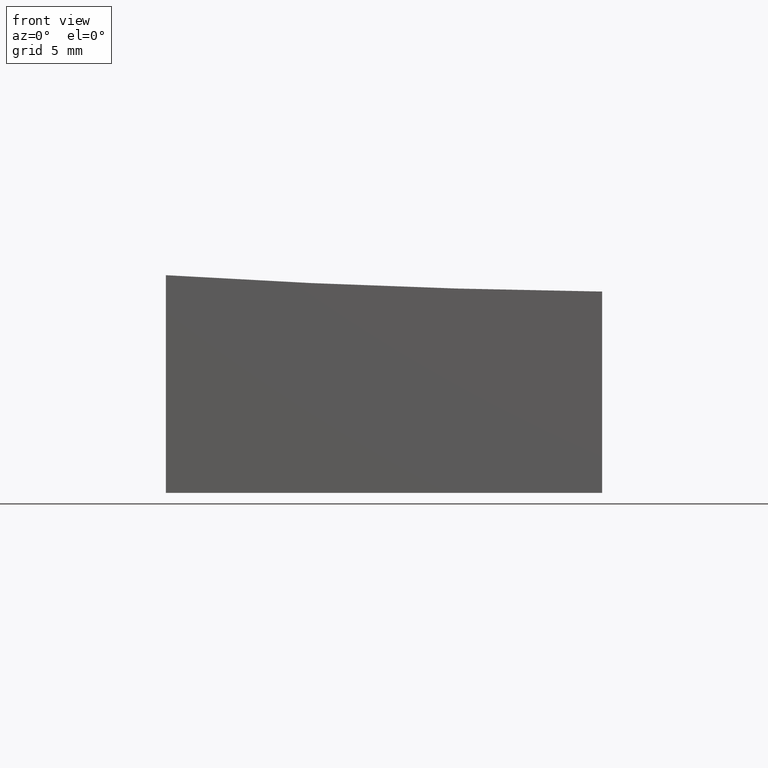
[diagram: clean part render]
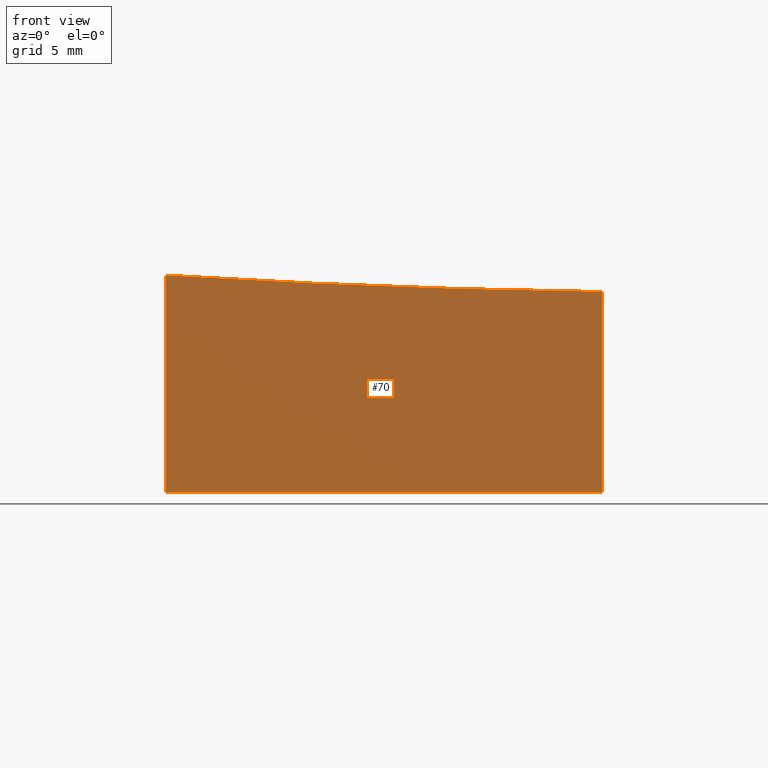
[diagram: same view with one face highlighted and labeled with its STEP entity id]
A machine part, front view. The second image highlights one B-rep face of the part: STEP entity #70.
In plain terms, the highlighted planar face has unit normal (-0, 1, 0).
Its self-contained STEP definition (entity closure, byte-faithful):
#1 = PLANE ( 'NONE',  #266 ) ;
#22 = DIRECTION ( 'NONE',  ( -1.000000000000000000, -1.735571129814823690E-16, 0.000000000000000000 ) ) ;
#58 = CARTESIAN_POINT ( 'NONE',  ( 10.00000000000000178, -12.50000000000000000, -10.00000000000000000 ) ) ;
#70 = ADVANCED_FACE ( 'NONE', ( #190 ), #1, .F. ) ;
#82 = CARTESIAN_POINT ( 'NONE',  ( 10.00000000000000178, -12.50000000000000000, -0.7733733004237630659 ) ) ;
#83 = DIRECTION ( 'NONE',  ( -0.000000000000000000, -0.000000000000000000, -1.000000000000000000 ) ) ;
#87 = CARTESIAN_POINT ( 'NONE',  ( 10.00000000000000178, -12.50000000000000000, 10.00000000000000000 ) ) ;
#94 = EDGE_CURVE ( 'NONE', #220, #195, #148, .T. ) ;
#104 = CARTESIAN_POINT ( 'NONE',  ( 10.00000000000000178, -12.50000000000000000, -10.00000000000000000 ) ) ;
#106 = LINE ( 'NONE', #188, #229 ) ;
#107 = ORIENTED_EDGE ( 'NONE', *, *, #94, .T. ) ;
#114 = VECTOR ( 'NONE', #83, 1000.000000000000000 ) ;
#116 = LINE ( 'NONE', #210, #114 ) ;
#126 = VERTEX_POINT ( 'NONE', #82 ) ;
#128 = EDGE_LOOP ( 'NONE', ( #150, #147, #217, #107 ) ) ;
#131 = VERTEX_POINT ( 'NONE', #144 ) ;
#135 = EDGE_CURVE ( 'NONE', #126, #131, #249, .T. ) ;
#138 = EDGE_CURVE ( 'NONE', #131, #220, #106, .T. ) ;
#144 = CARTESIAN_POINT ( 'NONE',  ( -9.999999999999996447, -12.50000000000000355, -0.02224248780913207213 ) ) ;
#147 = ORIENTED_EDGE ( 'NONE', *, *, #135, .T. ) ;
#148 = LINE ( 'NONE', #58, #198 ) ;
#150 = ORIENTED_EDGE ( 'NONE', *, *, #259, .F. ) ;
#166 = DIRECTION ( 'NONE',  ( -1.734723475976807094E-16, 1.000000000000000000, 0.000000000000000000 ) ) ;
#187 = DIRECTION ( 'NONE',  ( 1.000000000000000000, 1.734723475976807094E-16, -0.000000000000000000 ) ) ;
#188 = CARTESIAN_POINT ( 'NONE',  ( -9.999999999999998224, -12.50000000000000355, 10.00000000000000000 ) ) ;
#190 = FACE_OUTER_BOUND ( 'NONE', #128, .T. ) ;
#195 = VERTEX_POINT ( 'NONE', #104 ) ;
#198 = VECTOR ( 'NONE', #187, 1000.000000000000000 ) ;
#210 = CARTESIAN_POINT ( 'NONE',  ( 10.00000000000000178, -12.50000000000000000, 10.00000000000000000 ) ) ;
#211 = DIRECTION ( 'NONE',  ( -0.000000000000000000, -0.000000000000000000, -1.000000000000000000 ) ) ;
#213 = CARTESIAN_POINT ( 'NONE',  ( 15.00000000000005329, -12.49999999999999822, 399.0000000000000000 ) ) ;
#217 = ORIENTED_EDGE ( 'NONE', *, *, #138, .T. ) ;
#220 = VERTEX_POINT ( 'NONE', #248 ) ;
#224 = AXIS2_PLACEMENT_3D ( 'NONE', #213, #275, #22 ) ;
#229 = VECTOR ( 'NONE', #211, 1000.000000000000000 ) ;
#248 = CARTESIAN_POINT ( 'NONE',  ( -9.999999999999998224, -12.50000000000000355, -10.00000000000000000 ) ) ;
#249 = CIRCLE ( 'NONE', #224, 399.8046397929868476 ) ;
#259 = EDGE_CURVE ( 'NONE', #126, #195, #116, .T. ) ;
#260 = DIRECTION ( 'NONE',  ( -1.000000000000000000, -1.734723475976807094E-16, 0.000000000000000000 ) ) ;
#266 = AXIS2_PLACEMENT_3D ( 'NONE', #87, #166, #260 ) ;
#275 = DIRECTION ( 'NONE',  ( -1.734723475976807094E-16, 1.000000000000000000, 0.000000000000000000 ) ) ;